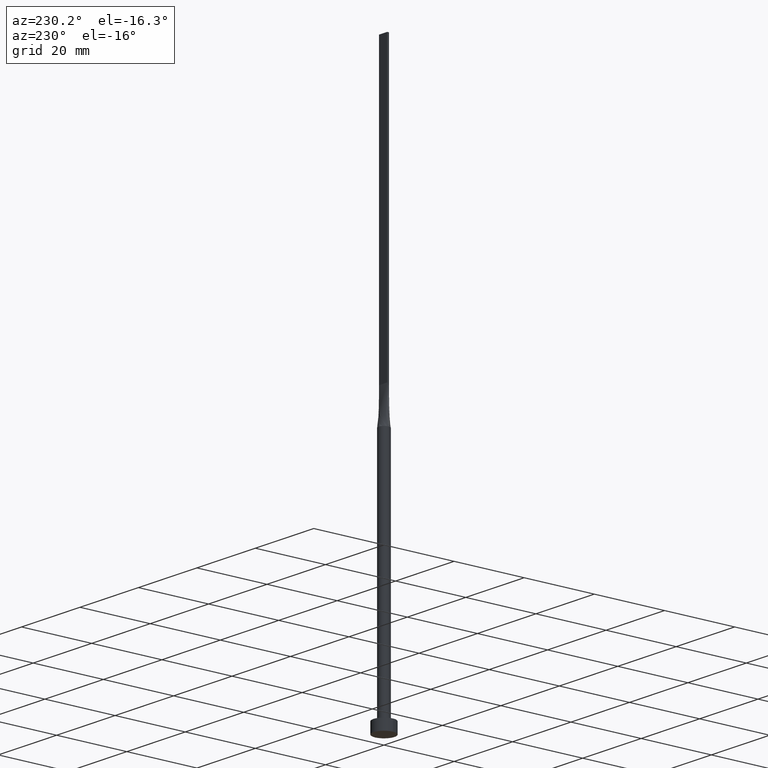
[diagram: clean part render]
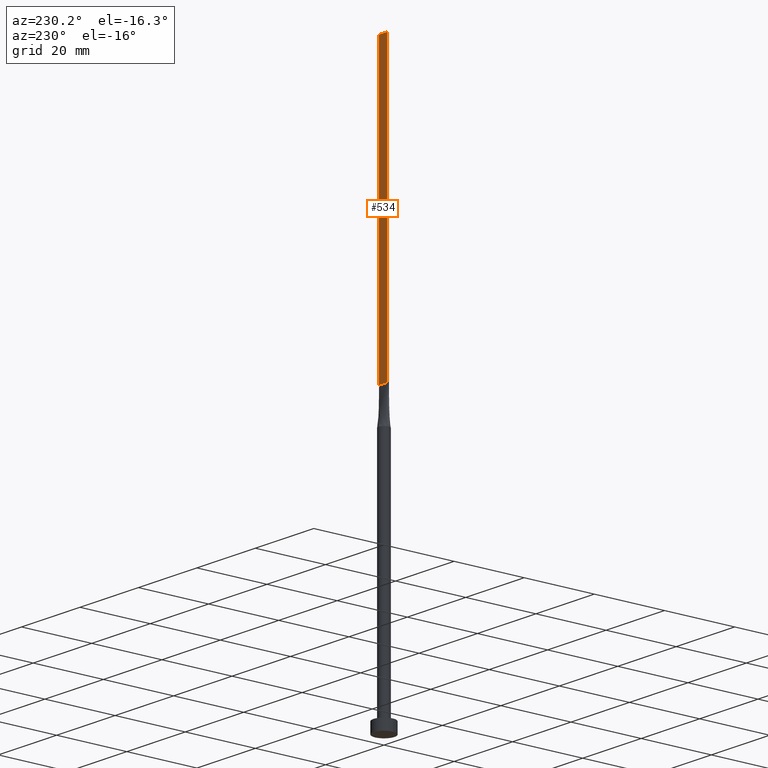
[diagram: same view with one face highlighted and labeled with its STEP entity id]
A machine part, auxiliary view. The second image highlights one B-rep face of the part: STEP entity #534.
In plain terms, the highlighted planar face has unit normal (0, -1, 0).
Its self-contained STEP definition (entity closure, byte-faithful):
#2 = LINE ( 'NONE', #188, #316 ) ;
#9 = PLANE ( 'NONE',  #536 ) ;
#15 = LINE ( 'NONE', #237, #391 ) ;
#44 = CARTESIAN_POINT ( 'NONE',  ( -1.399999999999999911, 0.2500000000000002220, 160.0000000000000000 ) ) ;
#58 = ORIENTED_EDGE ( 'NONE', *, *, #470, .F. ) ;
#65 = ORIENTED_EDGE ( 'NONE', *, *, #289, .T. ) ;
#77 = CARTESIAN_POINT ( 'NONE',  ( -1.399999999999999911, 0.2500000000000002220, 80.00000000000000000 ) ) ;
#83 = VERTEX_POINT ( 'NONE', #163 ) ;
#101 = FACE_OUTER_BOUND ( 'NONE', #410, .T. ) ;
#163 = CARTESIAN_POINT ( 'NONE',  ( -1.399999999999999911, 0.2500000000000002220, 160.0000000000000000 ) ) ;
#188 = CARTESIAN_POINT ( 'NONE',  ( 1.399999999999999911, 0.2500000000000002220, 160.0000000000000000 ) ) ;
#203 = VECTOR ( 'NONE', #444, 1000.000000000000000 ) ;
#227 = DIRECTION ( 'NONE',  ( -0.000000000000000000, -0.000000000000000000, -1.000000000000000000 ) ) ;
#237 = CARTESIAN_POINT ( 'NONE',  ( 1.399999999999999911, 0.2500000000000002220, 160.0000000000000000 ) ) ;
#239 = DIRECTION ( 'NONE',  ( 0.000000000000000000, -1.000000000000000000, 0.000000000000000000 ) ) ;
#241 = ORIENTED_EDGE ( 'NONE', *, *, #393, .T. ) ;
#247 = ORIENTED_EDGE ( 'NONE', *, *, #375, .F. ) ;
#289 = EDGE_CURVE ( 'NONE', #553, #335, #338, .T. ) ;
#316 = VECTOR ( 'NONE', #227, 1000.000000000000000 ) ;
#335 = VERTEX_POINT ( 'NONE', #516 ) ;
#338 = LINE ( 'NONE', #77, #451 ) ;
#349 = DIRECTION ( 'NONE',  ( -1.000000000000000000, -0.000000000000000000, -0.000000000000000000 ) ) ;
#361 = LINE ( 'NONE', #44, #203 ) ;
#375 = EDGE_CURVE ( 'NONE', #83, #335, #361, .T. ) ;
#391 = VECTOR ( 'NONE', #406, 1000.000000000000000 ) ;
#393 = EDGE_CURVE ( 'NONE', #518, #553, #2, .T. ) ;
#406 = DIRECTION ( 'NONE',  ( -1.000000000000000000, 0.000000000000000000, 0.000000000000000000 ) ) ;
#410 = EDGE_LOOP ( 'NONE', ( #65, #247, #58, #241 ) ) ;
#414 = DIRECTION ( 'NONE',  ( 0.000000000000000000, -0.000000000000000000, -1.000000000000000000 ) ) ;
#417 = CARTESIAN_POINT ( 'NONE',  ( 1.399999999999999911, 0.2500000000000002220, 80.00000000000000000 ) ) ;
#444 = DIRECTION ( 'NONE',  ( -0.000000000000000000, -0.000000000000000000, -1.000000000000000000 ) ) ;
#451 = VECTOR ( 'NONE', #349, 1000.000000000000000 ) ;
#454 = CARTESIAN_POINT ( 'NONE',  ( 1.399999999999999911, 0.2500000000000002220, 160.0000000000000000 ) ) ;
#470 = EDGE_CURVE ( 'NONE', #518, #83, #15, .T. ) ;
#516 = CARTESIAN_POINT ( 'NONE',  ( -1.399999999999999911, 0.2500000000000002220, 80.00000000000000000 ) ) ;
#518 = VERTEX_POINT ( 'NONE', #454 ) ;
#534 = ADVANCED_FACE ( 'NONE', ( #101 ), #9, .F. ) ;
#536 = AXIS2_PLACEMENT_3D ( 'NONE', #542, #239, #414 ) ;
#542 = CARTESIAN_POINT ( 'NONE',  ( 1.399999999999999911, 0.2500000000000002220, 160.0000000000000000 ) ) ;
#553 = VERTEX_POINT ( 'NONE', #417 ) ;